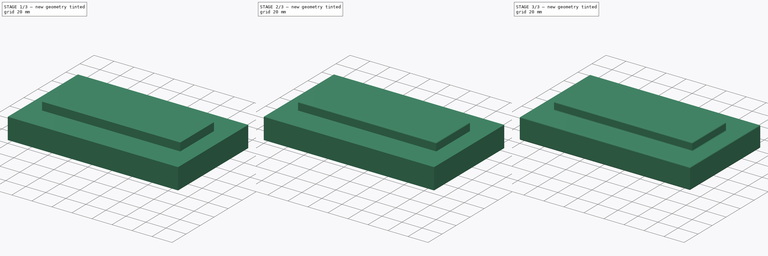
[diagram: build sequence overview — one tinted view per stage of 3, left to right]
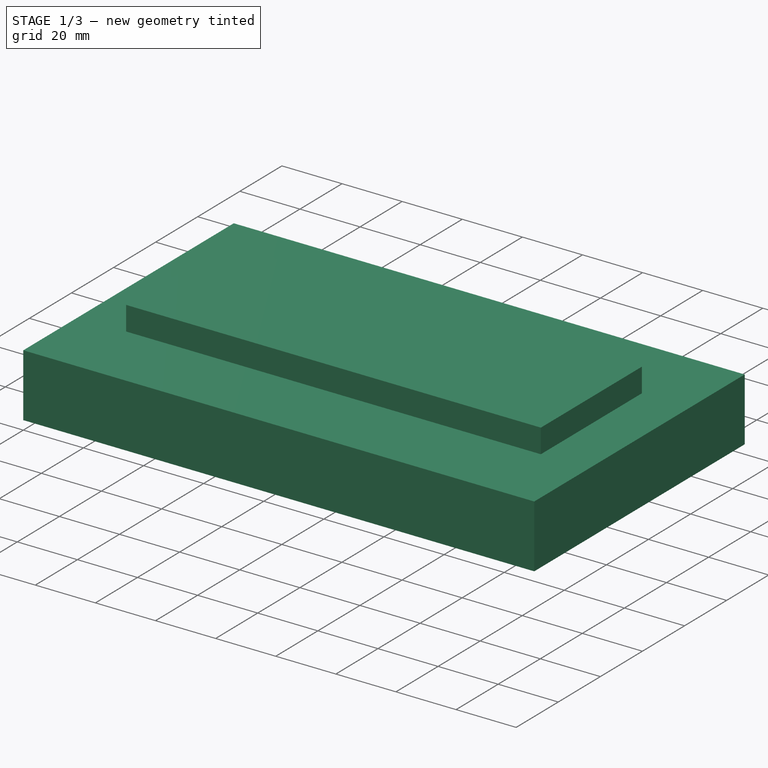
[diagram: stage 1 of 3 — iso view after this stage's code; geometry added in this stage tinted green]
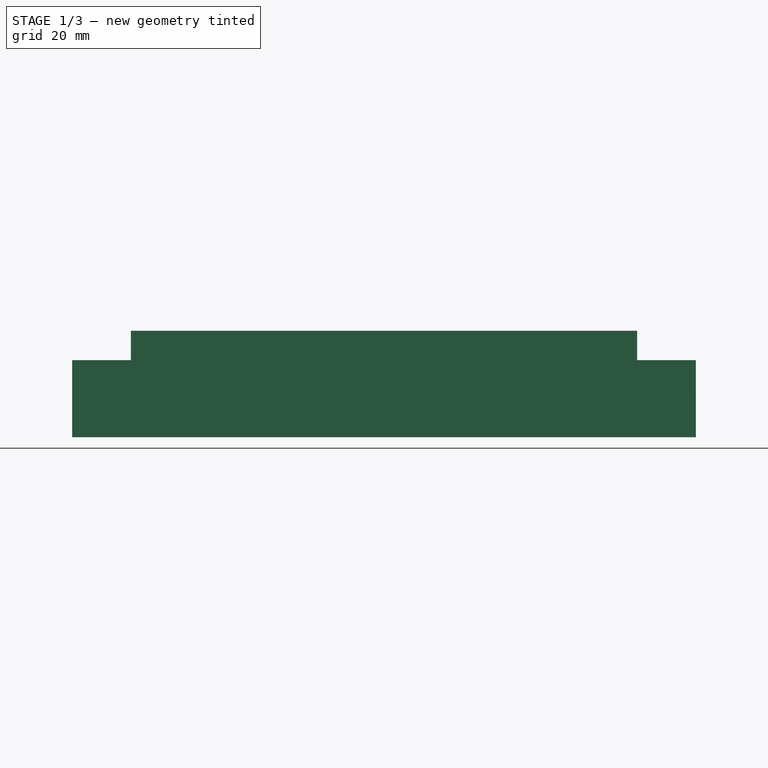
[diagram: stage 1 of 3 — front view after this stage's code; geometry added in this stage tinted green]
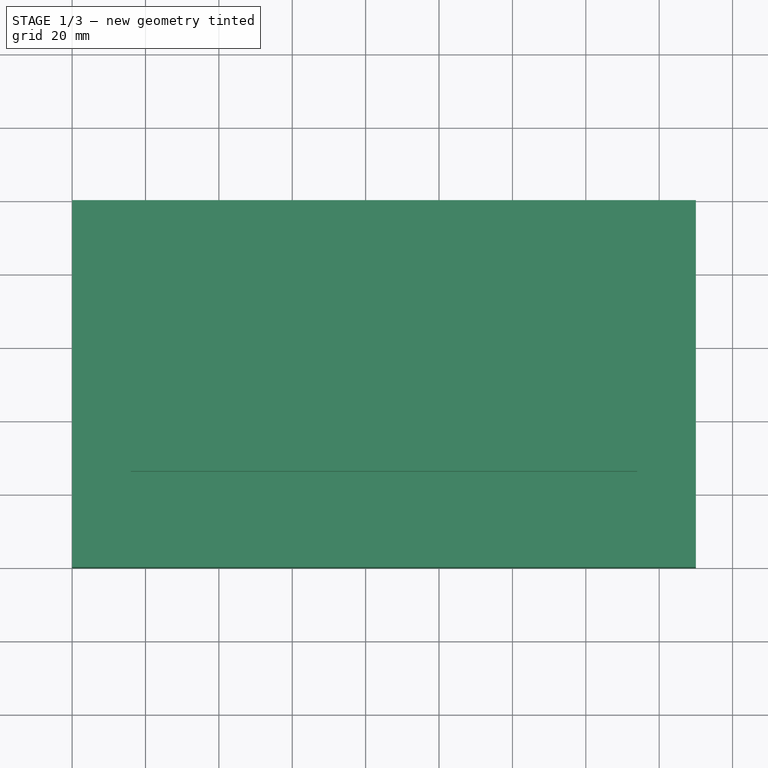
[diagram: stage 1 of 3 — top view after this stage's code; geometry added in this stage tinted green]
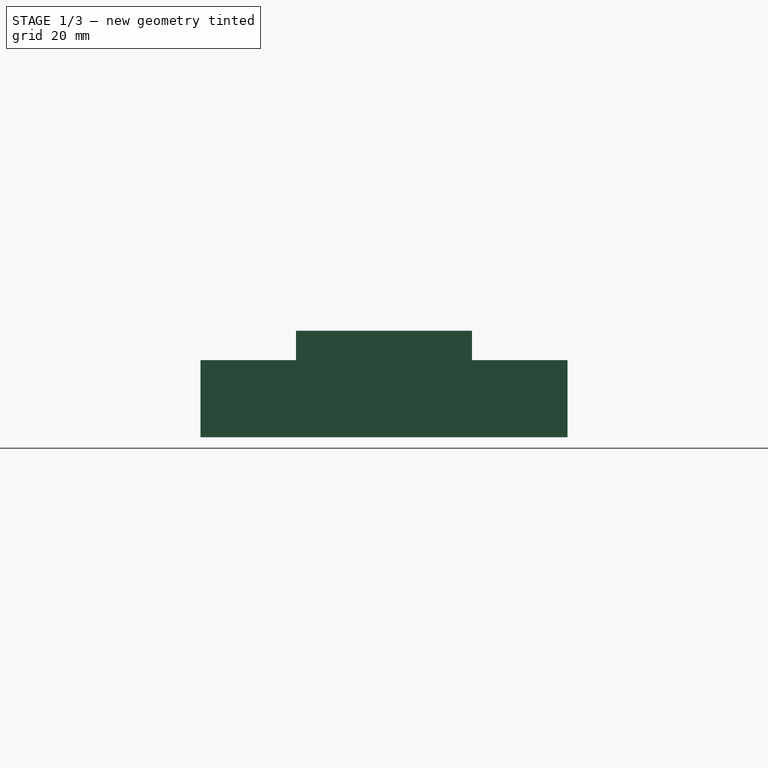
[diagram: stage 1 of 3 — right view after this stage's code; geometry added in this stage tinted green]
FCSTD DOCUMENT  (FreeCAD 1.0R39319 (Git))
Label: Riser
License: All rights reserved
LicenseURL: https://en.wikipedia.org/wiki/All_rights_reserved
objects: PartDesign::Fillet×3, Sketcher::SketchObject×2, PartDesign::Pad×2, PartDesign::Body×1
note: 20 computed .brp shape members not serialized (recipe doc carries the construction recipe); baked Part::Feature solids carry a one-line shape summary decoded from their .brp

FEATURE [Sketcher::SketchObject] Sketch
  ArcFitTolerance = 1e-06
  AttachmentSupport = -> [XY_Plane]
  FullyConstrained = true
  MakeInternals = false
  MapMode = 5
  sketch-geometry (4):
    g0: LineSegment StartX=0 StartY=0 StartZ=0 EndX=170 EndY=0 EndZ=0
    g1: LineSegment StartX=170 StartY=0 StartZ=0 EndX=170 EndY=100 EndZ=0
    g2: LineSegment StartX=170 StartY=100 StartZ=0 EndX=0 EndY=100 EndZ=0
    g3: LineSegment StartX=0 StartY=100 StartZ=0 EndX=0 EndY=0 EndZ=0
  constraints (11):
    c: Coincident(g0,g1)
    c: Coincident(g1,g2)
    c: Coincident(g2,g3)
    c: Coincident(g3,g0)
    c: Horizontal(g0)
    c: Horizontal(g2)
    c: Vertical(g1)
    c: Vertical(g3)
    c: Distance(g1,g3) = 170
    c: Distance(g0,g2) = 100
    c: Coincident(g0,g-1)
FEATURE [PartDesign::Pad] Pad
  Direction = (0,0,1)
  Length = 21
  Length2 = 10
  Profile = -> Sketch
  ReferenceAxis = -> Sketch [N_Axis]
  Refine = true
  Suppressed = false
  Type = 0
FEATURE [Sketcher::SketchObject] Sketch001
  ArcFitTolerance = 1e-06
  AttachmentSupport = -> [Pad]
  ExternalGeometry = -> [Pad]
  FullyConstrained = true
  MakeInternals = false
  MapMode = 5
  Placement = pos=(0,0,21) rot=(0,0,1;0rad)
  sketch-geometry (7):
    g0: LineSegment [constr] StartX=0 StartY=100 StartZ=0 EndX=170 EndY=1.42e-14 EndZ=0
    g1: LineSegment StartX=16 StartY=26 StartZ=0 EndX=154 EndY=26 EndZ=0
    g2: LineSegment StartX=154 StartY=26 StartZ=0 EndX=154 EndY=74 EndZ=0
    g3: LineSegment StartX=154 StartY=74 StartZ=0 EndX=16 EndY=74 EndZ=0
    g4: LineSegment StartX=16 StartY=74 StartZ=0 EndX=16 EndY=26 EndZ=0
    g5: GeomPoint [constr] X=85 Y=50 Z=0
    g6: LineSegment [constr] StartX=0 StartY=0 StartZ=0 EndX=170 EndY=100 EndZ=0
  constraints (17):
    c: Coincident(g0,g-6)
    c: Coincident(g0,g-5)
    c: Coincident(g1,g2)
    c: Coincident(g2,g3)
    c: Coincident(g3,g4)
    c: Coincident(g4,g1)
    c: Horizontal(g1)
    c: Horizontal(g3)
    c: Vertical(g2)
    c: Vertical(g4)
    c: Symmetric(g3,g1,g5)
    c: Distance(g2,g4) = 138
    c: Distance(g1,g3) = 48
    c: Coincident(g6,g-1)
    c: Coincident(g6,g-4)
    c: PointOnObject(g5,g6)
    c: PointOnObject(g5,g0)
FEATURE [PartDesign::Pad] Pad001
  BaseFeature = -> Pad
  Direction = (0,0,1)
  Length = 8
  Length2 = 10
  Profile = -> Sketch001
  ReferenceAxis = -> Sketch001 [N_Axis]
  Refine = true
  Suppressed = false
  Type = 0
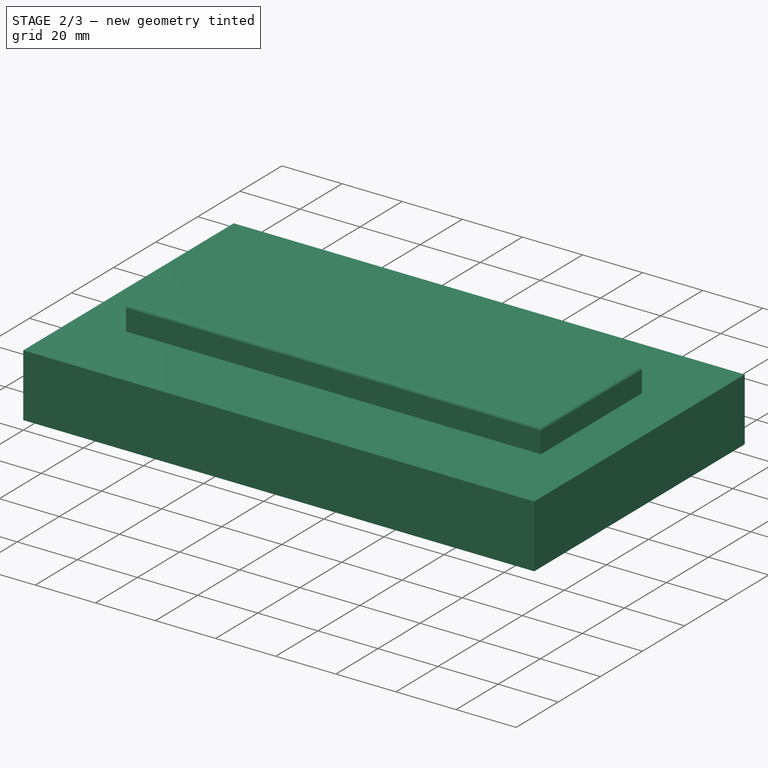
[diagram: stage 2 of 3 — iso view after this stage's code; geometry added in this stage tinted green]
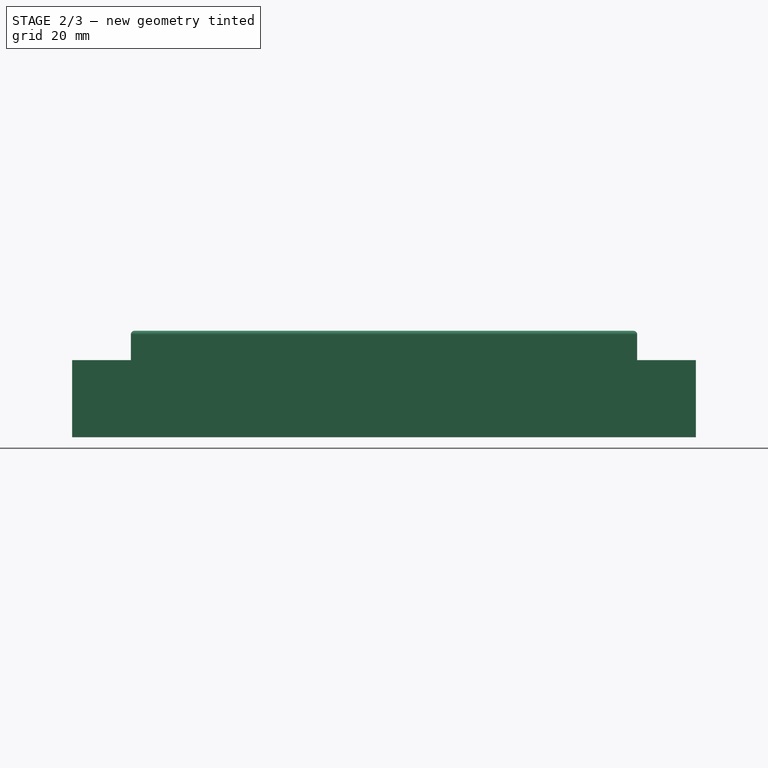
[diagram: stage 2 of 3 — front view after this stage's code; geometry added in this stage tinted green]
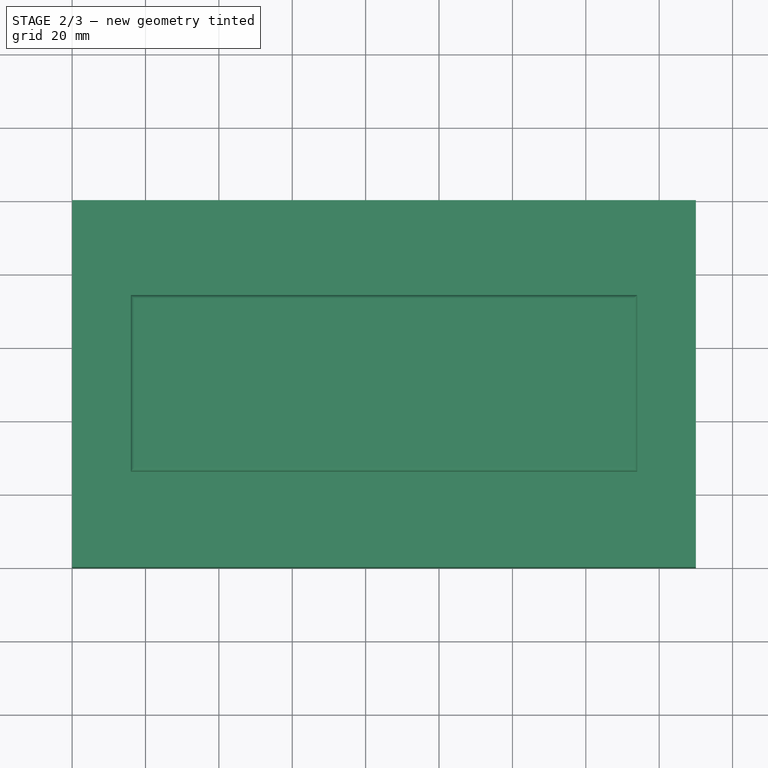
[diagram: stage 2 of 3 — top view after this stage's code; geometry added in this stage tinted green]
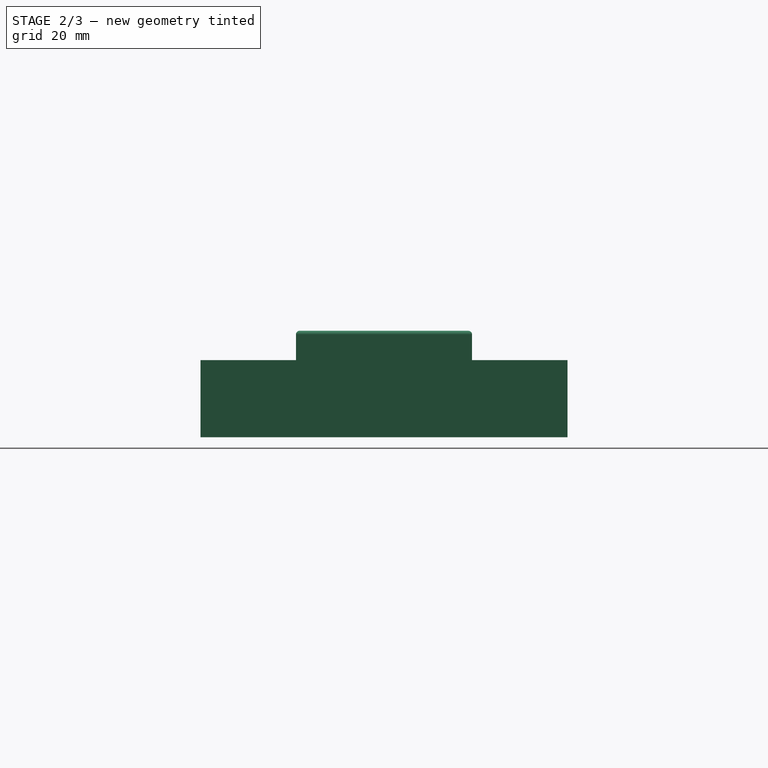
[diagram: stage 2 of 3 — right view after this stage's code; geometry added in this stage tinted green]
FEATURE [PartDesign::Fillet] Fillet
  Base = -> Pad001 [Face11]
  BaseFeature = -> Pad001
  Radius = 1
  Refine = true
  SupportTransform = false
  Suppressed = false
  UseAllEdges = false
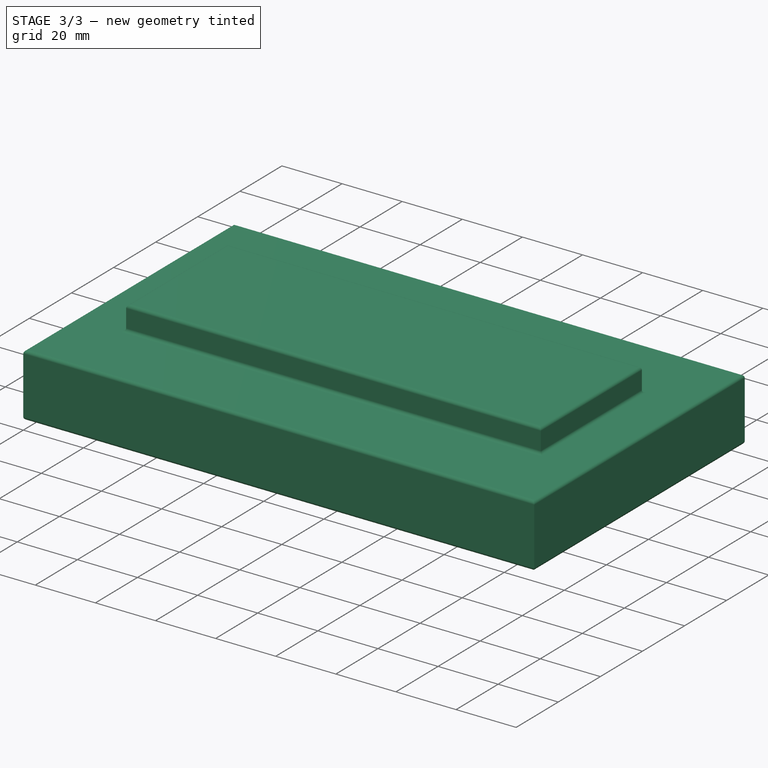
[diagram: stage 3 of 3 — iso view after this stage's code; geometry added in this stage tinted green]
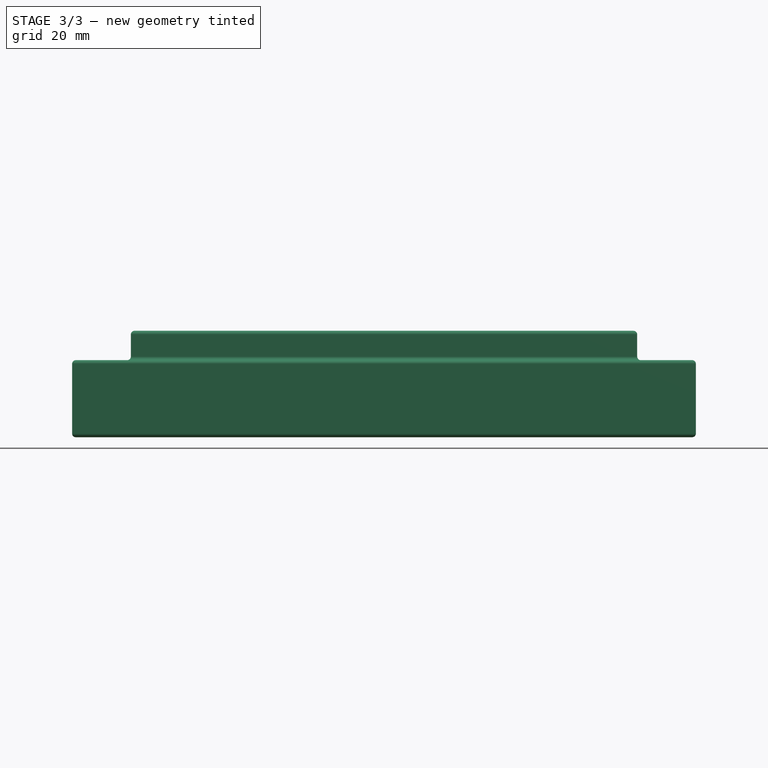
[diagram: stage 3 of 3 — front view after this stage's code; geometry added in this stage tinted green]
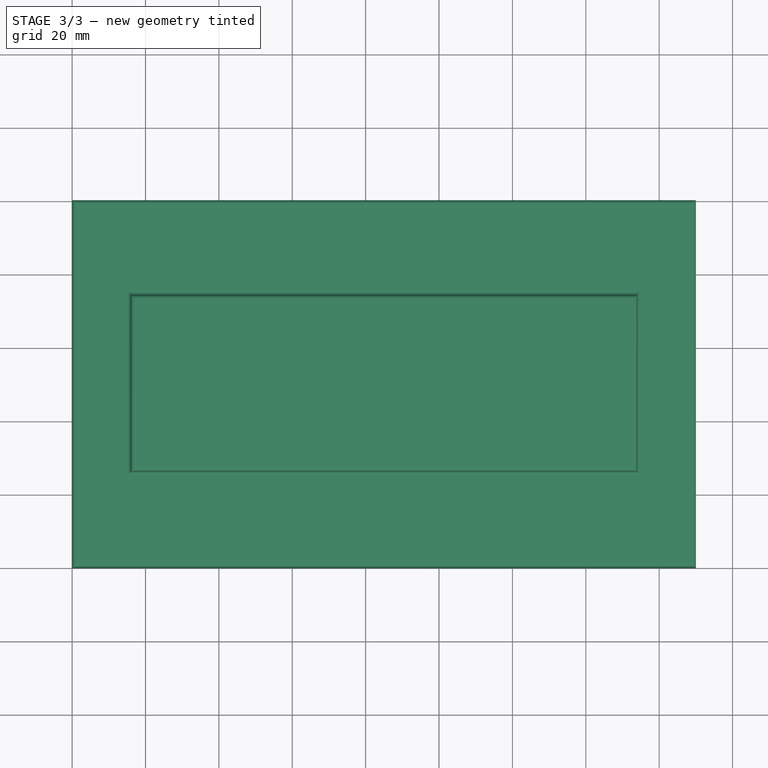
[diagram: stage 3 of 3 — top view after this stage's code; geometry added in this stage tinted green]
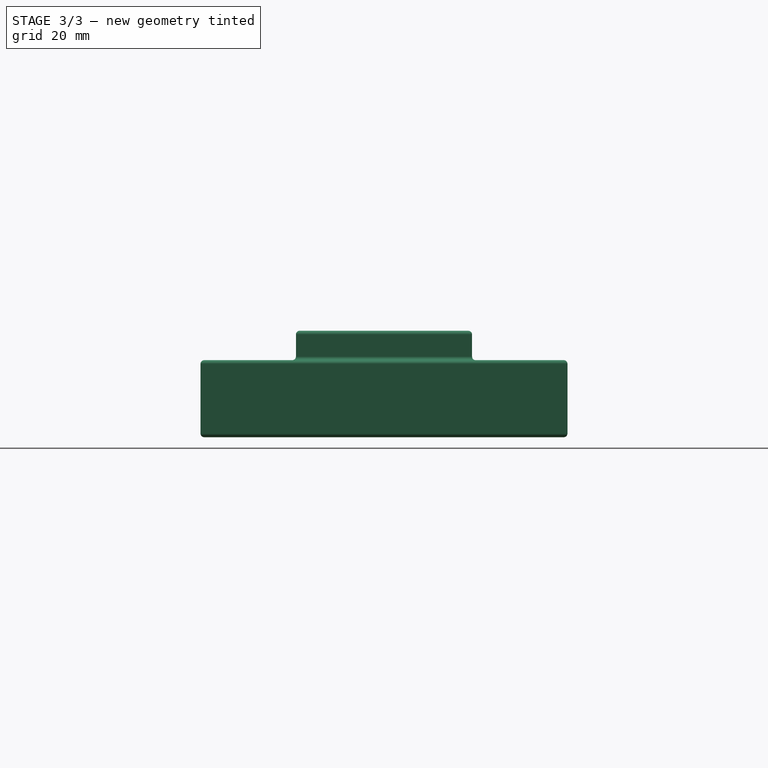
[diagram: stage 3 of 3 — right view after this stage's code; geometry added in this stage tinted green]
FEATURE [PartDesign::Fillet] Fillet001
  Base = -> Fillet [Face4]
  BaseFeature = -> Fillet
  Radius = 1
  Refine = true
  SupportTransform = false
  Suppressed = false
  UseAllEdges = false
FEATURE [PartDesign::Fillet] Fillet002
  Base = -> Fillet001 [Face23]
  BaseFeature = -> Fillet001
  Radius = 1
  Refine = true
  SupportTransform = false
  Suppressed = false
  UseAllEdges = false
FEATURE [PartDesign::Body] Body
  AllowCompound = false
  Group = -> [Sketch,Pad,Sketch001,Pad001,Fillet,Fillet001,Fillet002]
  Origin = -> Origin
  Tip = -> Fillet002
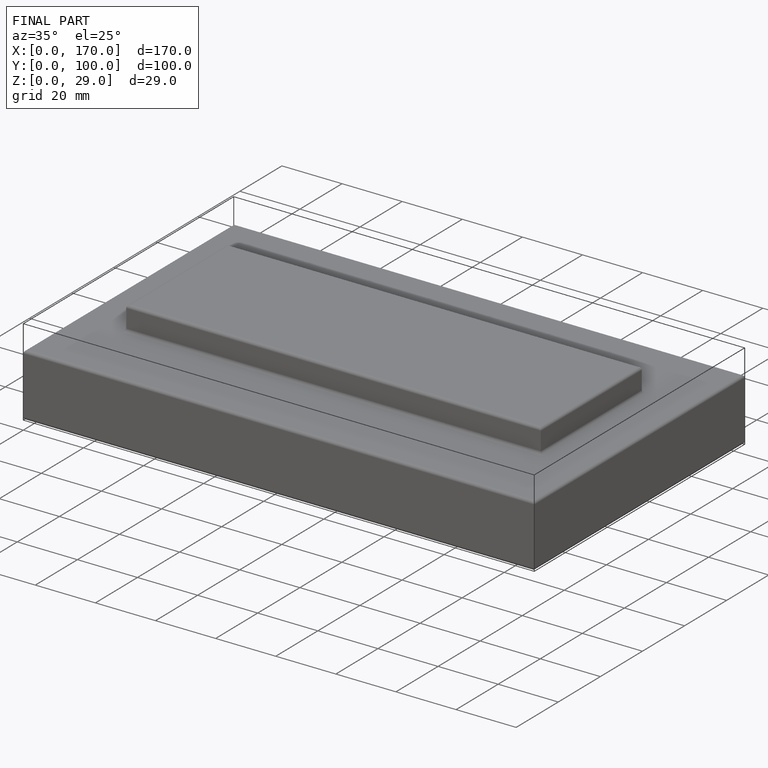
[diagram: finished part — iso view with bounding-box wireframe]
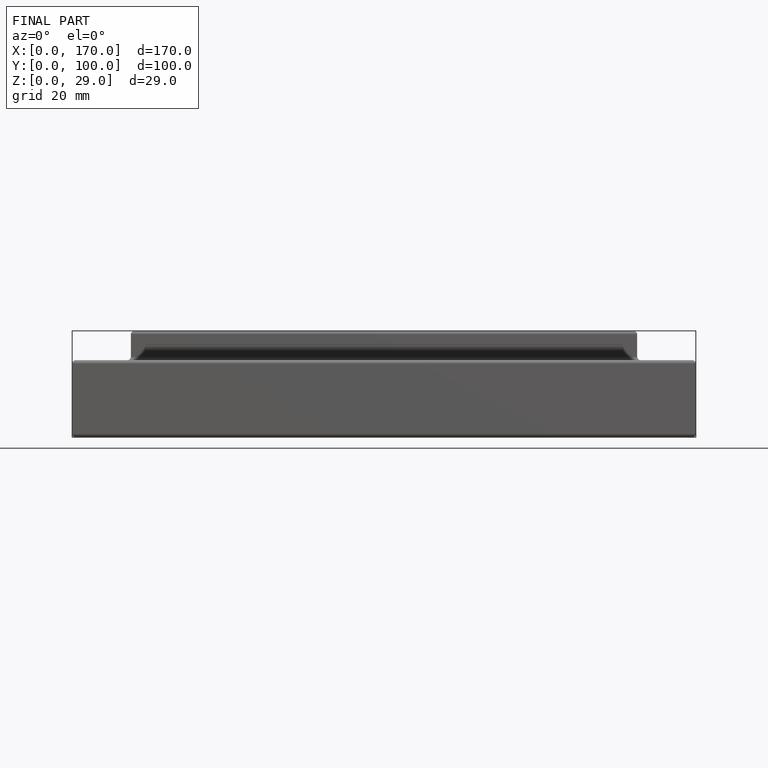
[diagram: finished part — front view with bounding-box wireframe]
